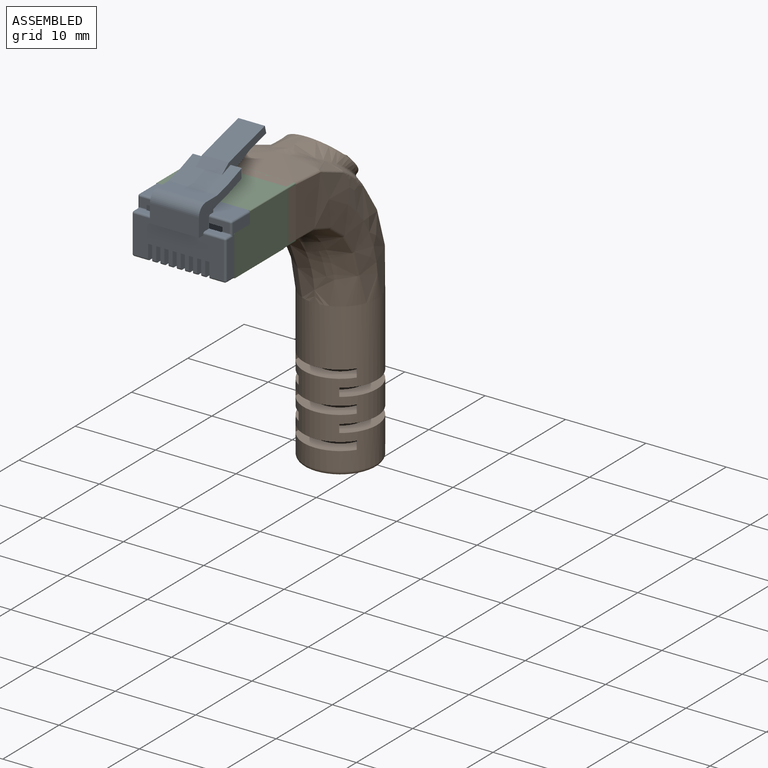
[diagram: assembled view]
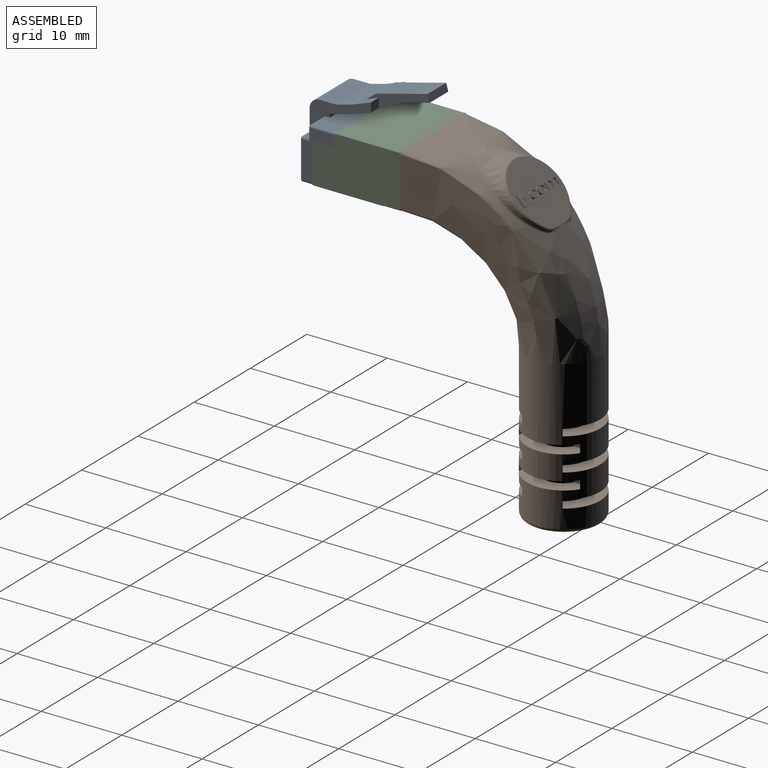
[diagram: assembled view, second angle]
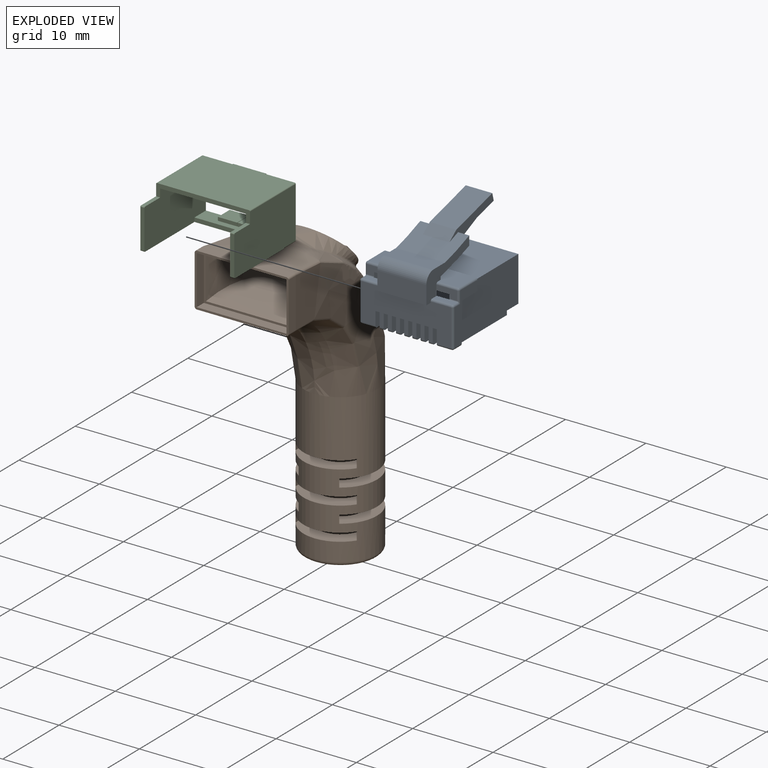
[diagram: exploded view]
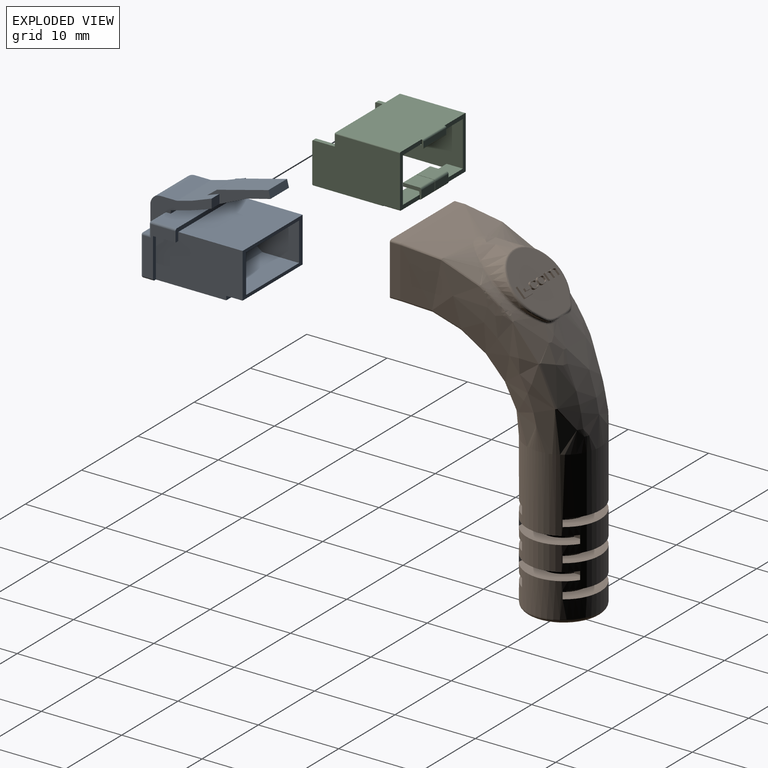
[diagram: exploded view, second angle]
ASSEMBLY  parts=3 mates=4
PART A: 144 faces, bbox 11.7x14x11.7 mm
  f0: plane 6.1x4.06mm, normal (0,0,-1), area 9.7mm2, adj f2,f97,f102,f103,f104,f130,f134,f135
  f1: plane 11.18x10.03mm, normal (-1,0,0), area 75.2mm2, adj f2,f10,f12,f13,f14,f16,f17,f18
  f2: cylinder r=0.25mm len=1.27mm, axis (0,-1,0), area 0.5mm2, adj f0,f1,f101,f135
  f3: plane 1.4x1.14mm, normal (0,-1,0), area 1.6mm2, adj f69,f71,f78,f85
  f4: plane 11.18x3.05mm, normal (1,0,0), area 31mm2, adj f67,f77,f78,f90,f95,f97,f98,f130
  f5: plane 11.18x4.57mm, normal (0,1,0), area 43.5mm2, adj f10,f11,f12,f14,f15,f16,f18,f19
  f6: plane 2.54x1.14mm, normal (0,1,0), area 2.1mm2, adj f60,f64,f77,f89,f90,f116
  f7: plane 2.54x0.76mm, normal (1,0,0), area 1.8mm2, adj f59,f64,f77,f86,f87,f116
  f8: plane 10.67x5.59mm, normal (0,-1,0), area 14.7mm2, adj f60,f61,f63,f64,f129,f133,f136,f138
  f9: plane 6.1x4.06mm, normal (0,0,1), area 9.7mm2, adj f87,f89,f92,f95,f96,f130,f131,f132
  f10: plane 4.45x2.95mm, normal (0,0,1), area 11.2mm2, adj f1,f5,f11,f13,f42,f43,f58,f59
  f11: plane 0.51x0.51mm, normal (-1,0,0), area 0.3mm2, adj f5,f10,f12,f42
  f12: plane 4.45x2.95mm, normal (0,0,-1), area 11.2mm2, adj f1,f5,f11,f13,f42,f43,f58,f59
  f13: plane 2.54x0.51mm, normal (0,1,0), area 1.3mm2, adj f1,f10,f12,f58
  f14: plane 4.45x2.95mm, normal (0,0,1), area 11.2mm2, adj f1,f5,f15,f17,f46,f47,f58,f59
  f15: plane 0.51x0.51mm, normal (-1,0,0), area 0.3mm2, adj f5,f14,f16,f46
  f16: plane 4.45x2.95mm, normal (0,0,-1), area 11.2mm2, adj f1,f5,f15,f17,f46,f47,f58,f59
  f17: plane 2.54x0.51mm, normal (0,1,0), area 1.3mm2, adj f1,f14,f16,f58
  f18: plane 4.45x2.95mm, normal (0,0,1), area 11.2mm2, adj f1,f5,f19,f21,f48,f49,f58,f59
  f19: plane 0.51x0.51mm, normal (-1,0,0), area 0.3mm2, adj f5,f18,f20,f48
  f20: plane 4.45x2.95mm, normal (0,0,-1), area 11.2mm2, adj f1,f5,f19,f21,f48,f49,f58,f59
  f21: plane 2.54x0.51mm, normal (0,1,0), area 1.3mm2, adj f1,f18,f20,f58
  f22: plane 4.45x2.95mm, normal (0,0,1), area 11.2mm2, adj f1,f5,f23,f25,f50,f51,f58,f59
  f23: plane 0.51x0.51mm, normal (-1,0,0), area 0.3mm2, adj f5,f22,f24,f50
  f24: plane 4.45x2.95mm, normal (0,0,-1), area 11.2mm2, adj f1,f5,f23,f25,f50,f51,f58,f59
  f25: plane 2.54x0.51mm, normal (0,1,0), area 1.3mm2, adj f1,f22,f24,f58
  f26: plane 4.45x2.95mm, normal (0,0,1), area 11.2mm2, adj f1,f5,f27,f29,f52,f53,f58,f59
  f27: plane 0.51x0.51mm, normal (-1,0,0), area 0.3mm2, adj f5,f26,f28,f52
  f28: plane 4.45x2.95mm, normal (0,0,-1), area 11.2mm2, adj f1,f5,f27,f29,f52,f53,f58,f59
  f29: plane 2.54x0.51mm, normal (0,1,0), area 1.3mm2, adj f1,f26,f28,f58
  f30: plane 4.45x2.95mm, normal (0,0,1), area 11.2mm2, adj f1,f5,f31,f33,f54,f55,f58,f59
  f31: plane 0.51x0.51mm, normal (-1,0,0), area 0.3mm2, adj f5,f30,f32,f54
  f32: plane 4.45x2.95mm, normal (0,0,-1), area 11.2mm2, adj f1,f5,f31,f33,f54,f55,f58,f59
  f33: plane 2.54x0.51mm, normal (0,1,0), area 1.3mm2, adj f1,f30,f32,f58
  f34: plane 4.45x2.95mm, normal (0,0,1), area 11.2mm2, adj f1,f5,f35,f37,f56,f57,f58,f59
  f35: plane 0.51x0.51mm, normal (-1,0,0), area 0.3mm2, adj f5,f34,f36,f56
  f36: plane 4.45x2.95mm, normal (0,0,-1), area 11.2mm2, adj f1,f5,f35,f37,f56,f57,f58,f59
  f37: plane 2.54x0.51mm, normal (0,1,0), area 1.3mm2, adj f1,f34,f36,f58
  f38: plane 4.45x2.95mm, normal (0,0,1), area 11.2mm2, adj f1,f5,f39,f41,f44,f45,f58,f59
  f39: plane 0.51x0.51mm, normal (-1,0,0), area 0.3mm2, adj f5,f38,f40,f44
  f40: plane 4.45x2.95mm, normal (0,0,-1), area 11.2mm2, adj f1,f5,f39,f41,f44,f45,f58,f59
  f41: plane 2.54x0.51mm, normal (0,1,0), area 1.3mm2, adj f1,f38,f40,f58
  f42: plane 1.02x0.51mm, normal (0,-1,0), area 0.5mm2, adj f10,f11,f12,f43
  f43: plane 0.51x0.51mm, normal (-1,0,0), area 0.3mm2, adj f10,f12,f42,f59
  f44: plane 1.02x0.51mm, normal (0,-1,0), area 0.5mm2, adj f38,f39,f40,f45
  f45: plane 0.51x0.51mm, normal (-1,0,0), area 0.3mm2, adj f38,f40,f44,f59
  f46: plane 1.02x0.51mm, normal (0,-1,0), area 0.5mm2, adj f14,f15,f16,f47
  f47: plane 0.51x0.51mm, normal (-1,0,0), area 0.3mm2, adj f14,f16,f46,f59
  f48: plane 1.02x0.51mm, normal (0,-1,0), area 0.5mm2, adj f18,f19,f20,f49
  f49: plane 0.51x0.51mm, normal (-1,0,0), area 0.3mm2, adj f18,f20,f48,f59
  f50: plane 1.02x0.51mm, normal (0,-1,0), area 0.5mm2, adj f22,f23,f24,f51
  f51: plane 0.51x0.51mm, normal (-1,0,0), area 0.3mm2, adj f22,f24,f50,f59
  f52: plane 1.02x0.51mm, normal (0,-1,0), area 0.5mm2, adj f26,f27,f28,f53
  f53: plane 0.51x0.51mm, normal (-1,0,0), area 0.3mm2, adj f26,f28,f52,f59
  f54: plane 1.02x0.51mm, normal (0,-1,0), area 0.5mm2, adj f30,f31,f32,f55
  f55: plane 0.51x0.51mm, normal (-1,0,0), area 0.3mm2, adj f30,f32,f54,f59
  f56: plane 1.02x0.51mm, normal (0,-1,0), area 0.5mm2, adj f34,f35,f36,f57
  f57: plane 0.51x0.51mm, normal (-1,0,0), area 0.3mm2, adj f34,f36,f56,f59
  f58: plane 9.4x4.4mm, normal (1,0,0), area 28mm2, adj f10,f12,f13,f14,f16,f17,f18,f20
  f59: plane 9.4x3.02mm, normal (0,-1,0), area 25.3mm2, adj f7,f10,f12,f14,f16,f18,f20,f22
  f60: plane 11.3x9.4mm, normal (-1,0,0), area 106.2mm2, adj f6,f8,f59,f63,f64,f65
  f61: plane 9.4x4.53mm, normal (1,0,0), area 42.6mm2, adj f8,f63,f64,f118
  f62: plane 9.4x2.09mm, normal (0.8,-0.6,0), area 24.6mm2, adj f63,f64,f118,f119
  f63: plane 11.43x4.78mm, normal (0,0,1), area 44.8mm2, adj f8,f58,f59,f60,f61,f62,f65,f66
  f64: plane 11.43x4.78mm, normal (0,0,-1), area 44.8mm2, adj f6,f7,f8,f58,f59,f60,f61,f62
  f65: plane 2.54x1.14mm, normal (0,1,0), area 2.1mm2, adj f60,f63,f78,f98,f102,f114
  f66: plane 2.54x0.76mm, normal (1,0,0), area 1.8mm2, adj f59,f63,f78,f104,f106,f114
  f67: plane 6.1x0.38mm, normal (0,-1,0), area 2.3mm2, adj f4,f68,f77,f78
  f68: plane 6.1x2.82mm, normal (-0.97,-0.26,0), area 17.8mm2, adj f67,f69,f77,f78
  f69: plane 6.1x2.26mm, normal (-0.95,-0.32,0), area 14.5mm2, adj f3,f68,f70,f77,f78,f79
  f70: plane 1.4x1.14mm, normal (0,-1,0), area 1.6mm2, adj f69,f71,f77,f84
  f71: plane 6.1x2.41mm, normal (0.94,0.34,0), area 10.3mm2, adj f3,f70,f72,f77,f78,f83,f84,f85
  f72: plane 6.1x1.91mm, normal (0.97,0.26,0), area 12mm2, adj f71,f73,f77,f78
  f73: plane 6.1x2.03mm, normal (1,0,0), area 12.4mm2, adj f72,f74,f77,f78
  f74: cylinder r=1.27mm len=6.1mm, axis (0,0,-1), area 12.2mm2, adj f73,f75,f77,f78
  f75: plane 6.1x2.29mm, normal (0,1,0), area 13.9mm2, adj f74,f76,f77,f78
  f76: plane 6.1x0.76mm, normal (-1,0,0), area 4.6mm2, adj f5,f75,f77,f78
  f77: plane 7.62x4.95mm, normal (0,0,1), area 12.5mm2, adj f4,f5,f6,f7,f59,f67,f68,f69
  f78: plane 7.62x4.95mm, normal (0,0,-1), area 12.5mm2, adj f3,f4,f5,f59,f65,f66,f67,f68
  f79: plane 3.43x3.3mm, normal (-0.91,-0.41,0), area 12.4mm2, adj f69,f80,f84,f85
  f80: plane 3.3x2.91mm, normal (-0.97,-0.25,0), area 9.9mm2, adj f79,f81,f84,f85
  f81: plane 3.3x0.93mm, normal (0.25,-0.97,0), area 3.2mm2, adj f80,f82,f84,f85
  f82: plane 6.4x3.3mm, normal (0.97,0.25,0), area 21.8mm2, adj f81,f83,f84,f85
  f83: plane 3.3x1.22mm, normal (0.79,0.61,0), area 5.1mm2, adj f71,f82,f84,f85
  f84: plane 7.86x3.2mm, normal (0,0,1), area 7.6mm2, adj f70,f71,f79,f80,f81,f82,f83
  f85: plane 7.86x3.2mm, normal (0,0,-1), area 7.6mm2, adj f3,f71,f79,f80,f81,f82,f83
  f86: cylinder r=0.25mm len=2.54mm, axis (0,0,-1), area 1mm2, adj f5,f7,f77,f88
  f87: cylinder r=0.25mm len=1.02mm, axis (0,-1,0), area 0.3mm2, adj f7,f9,f88,f117
  f88: sphere r=0.25mm, area 0.1mm2, adj f86,f87,f92
  f89: cylinder r=0.25mm len=1.52mm, axis (1,0,0), area 0.5mm2, adj f6,f9,f93,f117
  f90: cylinder r=0.25mm len=2.54mm, axis (0,0,1), area 1mm2, adj f4,f6,f77,f93
  f91: cylinder r=0.25mm len=1.78mm, axis (0,0,-1), area 0.7mm2, adj f1,f5,f40,f94
  f92: cylinder r=0.25mm len=4.57mm, axis (-1,0,0), area 1.8mm2, adj f5,f9,f88,f94
  f93: sphere r=0.25mm, area 0.1mm2, adj f89,f90,f95
  f94: sphere r=0.25mm, area 0.1mm2, adj f91,f92,f96
  f95: cylinder r=0.25mm len=3.05mm, axis (0,-1,0), area 1.2mm2, adj f4,f9,f93,f130
  f96: cylinder r=0.25mm len=1.27mm, axis (0,-1,0), area 0.5mm2, adj f1,f9,f94,f131
  f97: cylinder r=0.25mm len=3.05mm, axis (0,-1,0), area 1.2mm2, adj f0,f4,f100,f130
  f98: cylinder r=0.25mm len=2.54mm, axis (0,0,1), area 1mm2, adj f4,f65,f78,f100
  f99: cylinder r=0.25mm len=1.78mm, axis (0,0,-1), area 0.7mm2, adj f1,f5,f10,f101
  f100: sphere r=0.25mm, area 0.1mm2, adj f97,f98,f102
  f101: sphere r=0.25mm, area 0.1mm2, adj f2,f99,f103
  f102: cylinder r=0.25mm len=1.52mm, axis (1,0,0), area 0.5mm2, adj f0,f65,f100,f115
  f103: cylinder r=0.25mm len=4.57mm, axis (1,0,0), area 1.8mm2, adj f0,f5,f101,f105
  f104: cylinder r=0.25mm len=1.02mm, axis (0,-1,0), area 0.3mm2, adj f0,f66,f105,f115
  f105: sphere r=0.25mm, area 0.1mm2, adj f103,f104,f106
  f106: cylinder r=0.25mm len=2.54mm, axis (0,0,-1), area 1mm2, adj f5,f66,f78,f105
  f107: cylinder r=0.25mm len=0.51mm, axis (0,0,-1), area 0.2mm2, adj f1,f5,f36,f38
  f108: cylinder r=0.25mm len=0.51mm, axis (0,0,-1), area 0.2mm2, adj f1,f5,f32,f34
  f109: cylinder r=0.25mm len=0.51mm, axis (0,0,-1), area 0.2mm2, adj f1,f5,f28,f30
  f110: cylinder r=0.25mm len=0.51mm, axis (0,0,-1), area 0.2mm2, adj f1,f5,f24,f26
  f111: cylinder r=0.25mm len=0.51mm, axis (0,0,-1), area 0.2mm2, adj f1,f5,f20,f22
  f112: cylinder r=0.25mm len=0.51mm, axis (0,0,-1), area 0.2mm2, adj f1,f5,f16,f18
  f113: cylinder r=0.25mm len=0.51mm, axis (0,0,-1), area 0.2mm2, adj f1,f5,f12,f14
  f114: cylinder r=0.13mm len=0.89mm, axis (0,0,-1), area 0.2mm2, adj f63,f65,f66,f115
  f115: bspline ~0.38x0.38mm, area 0mm2, adj f102,f104,f114
  f116: cylinder r=0.13mm len=0.89mm, axis (0,0,-1), area 0.2mm2, adj f6,f7,f64,f117
  f117: bspline ~0.38x0.38mm, area 0mm2, adj f87,f89,f116
  f118: cylinder r=0.13mm len=9.4mm, axis (0,0,-1), area 0.8mm2, adj f61,f62,f63,f64
  f119: cylinder r=0.13mm len=9.4mm, axis (0,0,1), area 0.8mm2, adj f58,f62,f63,f64
  f120: cylinder r=0.13mm len=0.89mm, axis (0,0,-1), area 0.2mm2, adj f10,f58,f59,f63
  f121: cylinder r=0.13mm len=0.51mm, axis (0,0,-1), area 0.1mm2, adj f12,f14,f58,f59
  f122: cylinder r=0.13mm len=0.51mm, axis (0,0,-1), area 0.1mm2, adj f16,f18,f58,f59
  f123: cylinder r=0.13mm len=0.51mm, axis (0,0,-1), area 0.1mm2, adj f20,f22,f58,f59
  f124: cylinder r=0.13mm len=0.51mm, axis (0,0,-1), area 0.1mm2, adj f24,f26,f58,f59
  f125: cylinder r=0.13mm len=0.51mm, axis (0,0,-1), area 0.1mm2, adj f28,f30,f58,f59
  f126: cylinder r=0.13mm len=0.51mm, axis (0,0,-1), area 0.1mm2, adj f32,f34,f58,f59
  f127: cylinder r=0.13mm len=0.51mm, axis (0,0,-1), area 0.1mm2, adj f36,f38,f58,f59
  f128: cylinder r=0.13mm len=0.89mm, axis (0,0,-1), area 0.2mm2, adj f40,f58,f59,f64
  f129: plane 10.67x8mm, normal (1,0,0), area 85.4mm2, adj f8,f130,f133,f136
  f130: plane 11.68x1.52mm, normal (0,-1,0), area 6.9mm2, adj f0,f4,f9,f95,f97,f129,f132,f133
  f131: plane 5.08x0.51mm, normal (0,-1,0), area 2.6mm2, adj f1,f9,f96,f132,f133
  f132: plane 2.79x0.51mm, normal (-1,0,0), area 1.4mm2, adj f9,f130,f131,f133
  f133: plane 10.8x6.1mm, normal (0,0,1), area 61.9mm2, adj f1,f8,f129,f130,f131,f132,f137,f138
  f134: plane 2.79x0.51mm, normal (-1,0,0), area 1.4mm2, adj f0,f130,f135,f136
  f135: plane 5.08x0.51mm, normal (0,-1,0), area 2.6mm2, adj f0,f1,f2,f134,f136
  f136: plane 10.8x6.1mm, normal (0,0,-1), area 61.9mm2, adj f1,f8,f129,f130,f134,f135,f137,f138
  f137: plane 10.67x0.51mm, normal (0,-1,0), area 5.4mm2, adj f1,f133,f136,f138
  f138: plane 10.67x2.03mm, normal (-1,0,0), area 21.7mm2, adj f8,f133,f136,f137
  f139: plane 2.03x1.52mm, normal (0,0,-1), area 3.1mm2, adj f1,f140,f142,f143
  f140: plane 7.62x1.52mm, normal (0,1,0), area 11.6mm2, adj f1,f139,f141,f143
  f141: plane 2.03x1.52mm, normal (0,0,1), area 3.1mm2, adj f1,f140,f142,f143
  f142: plane 7.62x1.52mm, normal (0,-1,0), area 11.6mm2, adj f1,f139,f141,f143
  f143: plane 7.62x2.03mm, normal (-1,0,0), area 15.5mm2, adj f139,f140,f141,f142
PART B: 169 faces, bbox 41.6x22.5x11.7 mm
  f0: bspline ~8.13x7.63mm, area 33.8mm2, adj f1,f77,f78,f83
  f1: extruded ~2.91x1.88mm, area 1.2mm2, adj f0,f78,f83
  f2: cylinder r=2.79mm len=19.05mm, axis (1,0,0), area 267.8mm2, adj f16,f17,f18,f19,f20,f23,f24,f25
  f3: torus R=4.06mm, axis (-1,0,0), area 22mm2, adj f4,f16
  f4: cylinder r=4.57mm len=18.54mm, axis (-1,0,0), area 441.1mm2, adj f3,f5,f17,f20,f21,f22,f23,f26
  f5: bspline ~20.98x19.94mm, area 745.2mm2, adj f4,f7,f8,f9,f10,f11,f12,f13
  f6: plane 7.66x5.78mm, normal (-0.71,-0.71,0), area 46mm2, adj f82,f83,f84,f85,f86,f87,f97,f98
  f7: cylinder r=0.25mm len=1.3mm, axis (0,-1,0), area 0.5mm2, adj f5,f8,f14,f92
  f8: plane 6.1x1.3mm, normal (0,0,1), area 7.9mm2, adj f5,f7,f9,f92
  f9: cylinder r=0.25mm len=1.3mm, axis (0,-1,0), area 0.5mm2, adj f5,f8,f10,f92
  f10: plane 11.18x1.3mm, normal (1,0,0), area 14.5mm2, adj f5,f9,f11,f92
  f11: cylinder r=0.25mm len=1.3mm, axis (0,-1,0), area 0.5mm2, adj f5,f10,f12,f92
  f12: plane 6.1x1.3mm, normal (0,0,-1), area 7.9mm2, adj f5,f11,f13,f92
  f13: cylinder r=0.25mm len=1.3mm, axis (0,-1,0), area 0.5mm2, adj f5,f12,f14,f92
  f14: plane 11.18x1.3mm, normal (-1,0,0), area 14.5mm2, adj f5,f7,f13,f92
  f15: plane 11.18x6.1mm, normal (0,1,0), area 8.5mm2, adj f88,f89,f90,f91,f93,f94,f95,f96
  f16: plane 8.13x8.13mm, normal (1,0,0), area 27.4mm2, adj f2,f3
  f17: plane 7.62x3.05mm, normal (1,0,0), area 14.4mm2, adj f2,f4,f18,f19,f21,f22
  f18: plane 1.47x1.02mm, normal (0,0,-1), area 1.5mm2, adj f2,f17,f20,f22
  f19: plane 1.47x1.02mm, normal (0,0,-1), area 1.5mm2, adj f2,f17,f20,f21
  f20: plane 7.62x3.05mm, normal (-1,0,0), area 14.4mm2, adj f2,f4,f18,f19,f21,f22
  f21: plane 1.02x1mm, normal (0,-1,0), area 1mm2, adj f4,f17,f19,f20
  f22: plane 1.02x1mm, normal (0,1,0), area 1mm2, adj f4,f17,f18,f20
  f23: plane 7.62x3.05mm, normal (1,0,0), area 14.4mm2, adj f2,f4,f24,f25,f27,f28
  f24: plane 1.47x1.02mm, normal (0,0,-1), area 1.5mm2, adj f2,f23,f26,f28
  f25: plane 1.47x1.02mm, normal (0,0,-1), area 1.5mm2, adj f2,f23,f26,f27
  f26: plane 7.62x3.05mm, normal (-1,0,0), area 14.4mm2, adj f2,f4,f24,f25,f27,f28
  f27: plane 1.02x1mm, normal (0,-1,0), area 1mm2, adj f4,f23,f25,f26
  f28: plane 1.02x1mm, normal (0,1,0), area 1mm2, adj f4,f23,f24,f26
  f29: plane 1.47x1.02mm, normal (0,0,1), area 1.5mm2, adj f2,f31,f32,f33
  f30: plane 1.47x1.02mm, normal (0,0,1), area 1.5mm2, adj f2,f31,f32,f34
  f31: plane 7.62x3.05mm, normal (1,0,0), area 14.4mm2, adj f2,f4,f29,f30,f33,f34
  f32: plane 7.62x3.05mm, normal (-1,0,0), area 14.4mm2, adj f2,f4,f29,f30,f33,f34
  f33: plane 1.02x1mm, normal (0,-1,0), area 1mm2, adj f4,f29,f31,f32
  f34: plane 1.02x1mm, normal (0,1,0), area 1mm2, adj f4,f30,f31,f32
  f35: plane 1.47x1.02mm, normal (0,0,1), area 1.5mm2, adj f2,f37,f38,f39
  f36: plane 1.47x1.02mm, normal (0,0,1), area 1.5mm2, adj f2,f37,f38,f40
  f37: plane 7.62x3.05mm, normal (1,0,0), area 14.4mm2, adj f2,f4,f35,f36,f39,f40
  f38: plane 7.62x3.05mm, normal (-1,0,0), area 14.4mm2, adj f2,f4,f35,f36,f39,f40
  f39: plane 1.02x1mm, normal (0,-1,0), area 1mm2, adj f4,f35,f37,f38
  f40: plane 1.02x1mm, normal (0,1,0), area 1mm2, adj f4,f36,f37,f38
  f41: plane 1.12x1.02mm, normal (0,1,0), area 1.1mm2, adj f2,f43,f44,f45
  f42: plane 1.12x1.02mm, normal (0,1,0), area 1.1mm2, adj f2,f43,f44,f46
  f43: plane 7.62x3.81mm, normal (1,0,0), area 16.4mm2, adj f2,f4,f41,f42,f45,f46
  f44: plane 7.62x3.81mm, normal (-1,0,0), area 16.4mm2, adj f2,f4,f41,f42,f45,f46
  f45: plane 1.77x1.02mm, normal (0,0,1), area 1.8mm2, adj f4,f41,f43,f44
  f46: plane 1.77x1.02mm, normal (0,0,-1), area 1.8mm2, adj f4,f42,f43,f44
  f47: plane 7.62x3.81mm, normal (1,0,0), area 16.4mm2, adj f2,f4,f48,f49,f51,f52
  f48: plane 1.12x1.02mm, normal (0,-1,0), area 1.1mm2, adj f2,f47,f50,f52
  f49: plane 1.12x1.02mm, normal (0,-1,0), area 1.1mm2, adj f2,f47,f50,f51
  f50: plane 7.62x3.81mm, normal (-1,0,0), area 16.4mm2, adj f2,f4,f48,f49,f51,f52
  f51: plane 1.77x1.02mm, normal (0,0,1), area 1.8mm2, adj f4,f47,f49,f50
  f52: plane 1.77x1.02mm, normal (0,0,-1), area 1.8mm2, adj f4,f47,f48,f50
  f53: plane 1.12x1.02mm, normal (0,1,0), area 1.1mm2, adj f2,f55,f56,f57
  f54: plane 1.12x1.02mm, normal (0,1,0), area 1.1mm2, adj f2,f55,f56,f58
  f55: plane 7.62x3.81mm, normal (1,0,0), area 16.4mm2, adj f2,f4,f53,f54,f57,f58
  f56: plane 7.62x3.81mm, normal (-1,0,0), area 16.4mm2, adj f2,f4,f53,f54,f57,f58
  f57: plane 1.77x1.02mm, normal (0,0,1), area 1.8mm2, adj f4,f53,f55,f56
  f58: plane 1.77x1.02mm, normal (0,0,-1), area 1.8mm2, adj f4,f54,f55,f56
  f59: plane 1.12x1.02mm, normal (0,-1,0), area 1.1mm2, adj f2,f61,f62,f64
  f60: plane 1.12x1.02mm, normal (0,-1,0), area 1.1mm2, adj f2,f61,f62,f63
  f61: plane 7.62x3.81mm, normal (-1,0,0), area 16.4mm2, adj f2,f4,f59,f60,f63,f64
  f62: plane 7.62x3.81mm, normal (1,0,0), area 16.4mm2, adj f2,f4,f59,f60,f63,f64
  f63: plane 1.77x1.02mm, normal (0,0,1), area 1.8mm2, adj f4,f60,f61,f62
  f64: plane 1.77x1.02mm, normal (0,0,-1), area 1.8mm2, adj f4,f59,f61,f62
  f65: plane 1.12x1.02mm, normal (0,1,0), area 1.1mm2, adj f2,f67,f68,f69
  f66: plane 1.12x1.02mm, normal (0,1,0), area 1.1mm2, adj f2,f67,f68,f70
  f67: plane 7.62x3.81mm, normal (1,0,0), area 16.4mm2, adj f2,f4,f65,f66,f69,f70
  f68: plane 7.62x3.81mm, normal (-1,0,0), area 16.4mm2, adj f2,f4,f65,f66,f69,f70
  f69: plane 1.77x1.02mm, normal (0,0,1), area 1.8mm2, adj f4,f65,f67,f68
  f70: plane 1.77x1.02mm, normal (0,0,-1), area 1.8mm2, adj f4,f66,f67,f68
  f71: plane 1.12x1.02mm, normal (0,-1,0), area 1.1mm2, adj f2,f73,f74,f76
  f72: plane 1.12x1.02mm, normal (0,-1,0), area 1.1mm2, adj f2,f73,f74,f75
  f73: plane 7.62x3.81mm, normal (-1,0,0), area 16.4mm2, adj f2,f4,f71,f72,f75,f76
  f74: plane 7.62x3.81mm, normal (1,0,0), area 16.4mm2, adj f2,f4,f71,f72,f75,f76
  f75: plane 1.77x1.02mm, normal (0,0,1), area 1.8mm2, adj f4,f72,f73,f74
  f76: plane 1.77x1.02mm, normal (0,0,-1), area 1.8mm2, adj f4,f71,f73,f74
  f77: extruded ~2.91x1.88mm, area 1.2mm2, adj f0,f78,f83
  f78: bspline ~10.43x8.44mm, area 6.7mm2, adj f0,f1,f5,f77,f79,f80,f82,f85
  f79: bspline ~1.64x0.58mm, area 0.4mm2, adj f5,f78,f81,f87
  f80: bspline ~1.64x0.58mm, area 0.4mm2, adj f5,f78,f81,f84
  f81: bspline ~1.48x0.2mm, area 0.2mm2, adj f5,f79,f80,f86
  f82: bspline ~1.19x1.16mm, area 0.7mm2, adj f6,f78,f83,f84
  f83: bspline ~8.16x4.99mm, area 5.9mm2, adj f0,f1,f6,f77,f82,f85
  f84: bspline ~1.52x0.47mm, area 0.4mm2, adj f6,f80,f82,f86
  f85: bspline ~1.34x1.17mm, area 0.7mm2, adj f6,f78,f83,f87
  f86: bspline ~1.48x0.14mm, area 0.2mm2, adj f6,f81,f84,f87
  f87: bspline ~1.52x0.47mm, area 0.4mm2, adj f6,f79,f85,f86
  f88: bspline ~18.11x14.53mm, area 184.4mm2, adj f2,f15,f89,f91
  f89: bspline ~19.49x19.42mm, area 101.9mm2, adj f2,f15,f88,f90
  f90: bspline ~19.49x19.42mm, area 220.1mm2, adj f2,f15,f89,f91
  f91: bspline ~19.19x15.43mm, area 86.3mm2, adj f2,f15,f88,f90
  f92: plane 11.68x6.6mm, normal (0,1,0), area 9mm2, adj f7,f8,f9,f10,f11,f12,f13,f14
  f93: plane 11.18x1.27mm, normal (1,0,0), area 14.2mm2, adj f15,f92,f94,f96
  f94: plane 6.1x1.27mm, normal (0,0,-1), area 7.7mm2, adj f15,f92,f93,f95
  f95: plane 11.18x1.27mm, normal (-1,0,0), area 14.2mm2, adj f15,f92,f94,f96
  f96: plane 6.1x1.27mm, normal (0,0,1), area 7.7mm2, adj f15,f92,f93,f95
  f97: plane 1.21x1.21mm, normal (0,0,-1), area 0.4mm2, adj f6,f98,f102,f103
  f98: plane 1.38x0.18mm, normal (0.71,-0.71,0), area 0.3mm2, adj f6,f97,f99,f103
  f99: plane 0.43x0.43mm, normal (0,0,1), area 0.1mm2, adj f6,f98,f100,f103
  f100: plane 0.95x0.18mm, normal (-0.71,0.71,0), area 0.2mm2, adj f6,f99,f101,f103
  f101: plane 0.96x0.96mm, normal (0,0,1), area 0.3mm2, adj f6,f100,f102,f103
  f102: plane 0.42x0.18mm, normal (-0.71,0.71,0), area 0.1mm2, adj f6,f97,f101,f103
  f103: plane 1.38x1.03mm, normal (-0.71,-0.71,0), area 1mm2, adj f97,f98,f99,f100,f101,f102
  f104: plane 0.42x0.42mm, normal (0,0,-1), area 0.1mm2, adj f6,f105,f107,f108
  f105: plane 0.83x0.18mm, normal (0.71,-0.71,0), area 0.2mm2, adj f6,f104,f106,f108
  f106: plane 0.42x0.42mm, normal (0,0,1), area 0.1mm2, adj f6,f105,f107,f108
  f107: plane 0.83x0.18mm, normal (-0.71,0.71,0), area 0.2mm2, adj f6,f104,f106,f108
  f108: plane 0.83x0.24mm, normal (-0.71,-0.71,0), area 0.3mm2, adj f104,f105,f106,f107
  f109: plane 1.21x0.66mm, normal (-0.71,-0.71,0), area 0.4mm2, adj f110,f111,f112,f113,f114,f115,f116,f117
  f110: extruded ~0.5x0.44mm, area 0.2mm2, adj f6,f109,f111,f117
  f111: plane 0.32x0.32mm, normal (0,0,-1), area 0.1mm2, adj f6,f109,f110,f112
  f112: extruded ~0.5x0.44mm, area 0.2mm2, adj f6,f109,f111,f113
  f113: plane 0.22x0.18mm, normal (0.71,-0.71,0), area 0.1mm2, adj f6,f109,f112,f114
  f114: extruded ~0.5x0.44mm, area 0.2mm2, adj f6,f109,f113,f115
  f115: plane 0.32x0.32mm, normal (0,0,1), area 0.1mm2, adj f6,f109,f114,f116
  f116: extruded ~0.5x0.44mm, area 0.2mm2, adj f6,f109,f115,f117
  f117: plane 0.22x0.18mm, normal (-0.71,0.71,0), area 0.1mm2, adj f6,f109,f110,f116
  f118: extruded ~0.36x0.36mm, area 0.1mm2, adj f109,f119,f125,f126
  f119: plane 0.31x0.18mm, normal (0.71,-0.71,0), area 0.1mm2, adj f109,f118,f120,f126
  f120: extruded ~0.36x0.36mm, area 0.1mm2, adj f109,f119,f121,f126
  f121: plane 0.31x0.31mm, normal (0,0,1), area 0mm2, adj f109,f120,f122,f126
  f122: extruded ~0.36x0.36mm, area 0.1mm2, adj f109,f121,f123,f126
  f123: plane 0.31x0.18mm, normal (-0.71,0.71,0), area 0.1mm2, adj f109,f122,f124,f126
  f124: extruded ~0.36x0.36mm, area 0.1mm2, adj f109,f123,f125,f126
  f125: plane 0.31x0.31mm, normal (0,0,-1), area 0mm2, adj f109,f118,f124,f126
  f126: plane 0.91x0.48mm, normal (-0.71,-0.71,0), area 0.6mm2, adj f118,f119,f120,f121,f122,f123,f124,f125
  f127: plane 0.82x0.82mm, normal (0,0,-1), area 0.2mm2, adj f6,f128,f150,f151
  f128: plane 0.18x0.18mm, normal (0.71,-0.71,0), area 0mm2, adj f6,f127,f129,f151
  f129: plane 0.58x0.58mm, normal (0,0,1), area 0.1mm2, adj f6,f128,f130,f151
  f130: extruded ~0.34x0.34mm, area 0.1mm2, adj f6,f129,f131,f151
  f131: plane 0.18x0.18mm, normal (0.71,-0.71,0), area 0mm2, adj f6,f130,f132,f151
  f132: extruded ~0.35x0.35mm, area 0.1mm2, adj f6,f131,f133,f151
  f133: plane 0.56x0.56mm, normal (0,0,-1), area 0.1mm2, adj f6,f132,f134,f151
  f134: plane 0.18x0.18mm, normal (0.71,-0.71,0), area 0mm2, adj f6,f133,f135,f151
  f135: plane 0.56x0.56mm, normal (0,0,1), area 0.1mm2, adj f6,f134,f136,f151
  f136: extruded ~0.36x0.36mm, area 0.1mm2, adj f6,f135,f137,f151
  f137: plane 0.18x0.18mm, normal (0.71,-0.71,0), area 0mm2, adj f6,f136,f138,f151
  f138: extruded ~0.32x0.32mm, area 0.1mm2, adj f6,f137,f139,f151
  f139: plane 0.59x0.59mm, normal (0,0,-1), area 0.1mm2, adj f6,f138,f140,f151
  f140: plane 0.18x0.18mm, normal (0.71,-0.71,0), area 0mm2, adj f6,f139,f141,f151
  f141: plane 0.61x0.61mm, normal (0,0,1), area 0.2mm2, adj f6,f140,f142,f151
  f142: extruded ~0.4x0.4mm, area 0.1mm2, adj f6,f141,f143,f151
  f143: plane 0.18x0.18mm, normal (-0.71,0.71,0), area 0mm2, adj f6,f142,f144,f151
  f144: extruded ~0.33x0.3mm, area 0.1mm2, adj f6,f143,f145,f151
  f145: extruded ~0.3x0.3mm, area 0.1mm2, adj f6,f144,f146,f151
  f146: plane 0.25x0.18mm, normal (-0.71,0.71,0), area 0.1mm2, adj f6,f145,f147,f151
  f147: extruded ~0.3x0.26mm, area 0.1mm2, adj f6,f146,f148,f151
  f148: plane 0.18x0.18mm, normal (-0.71,0.71,0), area 0mm2, adj f6,f147,f149,f151
  f149: plane 0.25x0.25mm, normal (0,0,1), area 0mm2, adj f6,f148,f150,f151
  f150: plane 0.18x0.18mm, normal (-0.71,0.71,0), area 0mm2, adj f6,f127,f149,f151
  f151: plane 1.9x0.65mm, normal (-0.71,-0.71,0), area 0.6mm2, adj f127,f128,f129,f130,f131,f132,f133,f134
  f152: extruded ~0.31x0.31mm, area 0.1mm2, adj f6,f153,f167,f168
  f153: plane 0.26x0.18mm, normal (-0.71,0.71,0), area 0.1mm2, adj f6,f152,f154,f168
  f154: extruded ~0.35x0.35mm, area 0.1mm2, adj f6,f153,f155,f168
  f155: plane 0.31x0.31mm, normal (0,0,1), area 0mm2, adj f6,f154,f156,f168
  f156: extruded ~0.35x0.35mm, area 0.1mm2, adj f6,f155,f157,f168
  f157: plane 0.28x0.18mm, normal (0.71,-0.71,0), area 0.1mm2, adj f6,f156,f158,f168
  f158: extruded ~0.31x0.31mm, area 0.1mm2, adj f6,f157,f159,f168
  f159: plane 0.18x0.18mm, normal (0.71,-0.71,0.02), area 0mm2, adj f6,f158,f160,f168
  f160: extruded ~0.4x0.4mm, area 0.1mm2, adj f6,f159,f161,f168
  f161: plane 0.25x0.18mm, normal (-0.71,0.71,0), area 0.1mm2, adj f6,f160,f162,f168
  f162: extruded ~0.45x0.44mm, area 0.2mm2, adj f6,f161,f163,f168
  f163: plane 0.32x0.32mm, normal (0,0,-1), area 0.1mm2, adj f6,f162,f164,f168
  f164: extruded ~0.44x0.44mm, area 0.2mm2, adj f6,f163,f165,f168
  f165: plane 0.34x0.18mm, normal (0.71,-0.71,0), area 0.1mm2, adj f6,f164,f166,f168
  f166: extruded ~0.4x0.4mm, area 0.1mm2, adj f6,f165,f167,f168
  f167: plane 0.18x0.18mm, normal (-0.71,0.71,-0.03), area 0mm2, adj f6,f152,f166,f168
  f168: plane 1.14x0.69mm, normal (-0.71,-0.71,0), area 0.4mm2, adj f152,f153,f154,f155,f156,f157,f158,f159
PART C: 67 faces, bbox 6.6x11.2x11.7 mm
  f0: plane 6.6x3.76mm, normal (0,-1,0), area 6.5mm2, adj f10,f11,f12,f14,f15,f16,f29,f31
  f1: plane 5.69x2.1mm, normal (-1,0,0), area 11.7mm2, adj f3,f7,f30,f34,f46,f53,f63
  f2: plane 5.31x2.08mm, normal (1,0,0), area 10.8mm2, adj f3,f7,f13,f34,f45,f53,f63
  f3: plane 5.82x0.51mm, normal (0,1,0), area 2.8mm2, adj f1,f2,f13,f24,f30,f34
  f4: plane 8.7x0.51mm, normal (-1,0,0), area 4.4mm2, adj f9,f13,f23,f27
  f5: plane 8.7x0.51mm, normal (-1,0,0), area 4.4mm2, adj f11,f15,f22,f26
  f6: plane 4.83x0.51mm, normal (0,1,0), area 2.5mm2, adj f9,f13,f27,f28
  f7: plane 6.6x3.76mm, normal (0,-1,0), area 6.5mm2, adj f1,f2,f9,f12,f13,f16,f30,f32
  f8: plane 4.83x0.51mm, normal (0,1,0), area 2.5mm2, adj f11,f15,f25,f26
  f9: plane 10.92x6.48mm, normal (0,0,1), area 66.6mm2, adj f4,f6,f7,f18,f20,f23,f24,f27
  f10: plane 5.69x2.1mm, normal (-1,0,0), area 11.7mm2, adj f0,f17,f29,f33,f61,f62,f64
  f11: plane 10.92x6.48mm, normal (0,0,-1), area 66.6mm2, adj f0,f5,f8,f19,f20,f21,f22,f25
  f12: plane 11.43x8.19mm, normal (1,0,0), area 93.2mm2, adj f0,f7,f20,f31,f32,f42,f43,f44
  f13: plane 10.92x6.1mm, normal (0,0,-1), area 62.7mm2, adj f2,f3,f4,f6,f7,f16,f18,f20
  f14: plane 5.31x2.08mm, normal (1,0,0), area 10.8mm2, adj f0,f15,f17,f33,f54,f62,f64
  f15: plane 10.92x6.1mm, normal (0,0,1), area 62.7mm2, adj f0,f5,f8,f14,f16,f17,f19,f20
  f16: plane 10.67x8.18mm, normal (-1,0,0), area 86.7mm2, adj f0,f7,f13,f15,f20,f35,f43,f44
  f17: plane 5.82x0.51mm, normal (0,1,0), area 2.8mm2, adj f10,f14,f15,f21,f29,f33
  f18: plane 2.67x0.51mm, normal (1,0,0), area 1.4mm2, adj f9,f13,f20,f28
  f19: plane 2.67x0.51mm, normal (1,0,0), area 1.4mm2, adj f11,f15,f20,f25
  f20: plane 11.68x1.52mm, normal (0,1,0), area 7mm2, adj f9,f11,f12,f13,f15,f16,f18,f19
  f21: plane 0.51x0.07mm, normal (-1,0,0), area 0mm2, adj f11,f15,f17,f22
  f22: plane 0.51x0.13mm, normal (0,-1,0), area 0.1mm2, adj f5,f11,f15,f21
  f23: plane 0.51x0.13mm, normal (0,-1,0), area 0.1mm2, adj f4,f9,f13,f24
  f24: plane 0.51x0.07mm, normal (-1,0,0), area 0mm2, adj f3,f9,f13,f23
  f25: cylinder r=0.13mm len=0.51mm, axis (0,0,1), area 0.1mm2, adj f8,f11,f15,f19
  f26: cylinder r=0.13mm len=0.51mm, axis (0,0,-1), area 0.1mm2, adj f5,f8,f11,f15
  f27: cylinder r=0.13mm len=0.51mm, axis (0,0,-1), area 0.1mm2, adj f4,f6,f9,f13
  f28: cylinder r=0.13mm len=0.51mm, axis (0,0,1), area 0.1mm2, adj f6,f9,f13,f18
  f29: cylinder r=0.13mm len=2.03mm, axis (0,1,0), area 0.4mm2, adj f0,f10,f11,f17
  f30: cylinder r=0.13mm len=2.03mm, axis (0,1,0), area 0.4mm2, adj f1,f3,f7,f9
  f31: cylinder r=0.13mm len=8.13mm, axis (0,1,0), area 1.6mm2, adj f0,f11,f12,f20
  f32: cylinder r=0.13mm len=8.13mm, axis (0,1,0), area 1.6mm2, adj f7,f9,f12,f20
  f33: plane 2.29x1.35mm, normal (0,0,1), area 2.2mm2, adj f10,f14,f17,f54,f55,f56,f57,f58
  f34: plane 2.29x1.35mm, normal (0,0,-1), area 2.2mm2, adj f1,f2,f3,f45,f46,f47,f48,f49
  f35: plane 4.06x0.03mm, normal (0,1,0), area 0.1mm2, adj f16,f36,f43,f44
  f36: cylinder r=0.13mm len=4.06mm, axis (0,0,-1), area 0.8mm2, adj f35,f37,f43,f44
  f37: plane 4.06x2.41mm, normal (1,0,0), area 9.8mm2, adj f36,f38,f43,f44
  f38: plane 4.06x0.43mm, normal (0,1,0), area 1.8mm2, adj f37,f39,f43,f44
  f39: plane 4.06x2.54mm, normal (-1,0,0), area 10.3mm2, adj f38,f40,f43,f44
  f40: cylinder r=0.25mm len=4.06mm, axis (0,0,-1), area 1.6mm2, adj f39,f41,f43,f44
  f41: plane 4.06x0.65mm, normal (0,-1,0), area 2.6mm2, adj f40,f42,f43,f44
  f42: cylinder r=0.19mm len=4.06mm, axis (0,0,-1), area 1.2mm2, adj f12,f41,f43,f44
  f43: plane 2.79x1.09mm, normal (0,0,1), area 1.3mm2, adj f12,f16,f35,f36,f37,f38,f39,f40
  f44: plane 2.79x1.09mm, normal (0,0,-1), area 1.3mm2, adj f12,f16,f35,f36,f37,f38,f39,f40
  f45: plane 2.39x0.28mm, normal (0,1,0), area 0.7mm2, adj f2,f34,f52,f53
  f46: cylinder r=0.19mm len=2.39mm, axis (0,0,-1), area 0.7mm2, adj f1,f34,f47,f53
  f47: plane 2.39x0.9mm, normal (0,-1,0), area 2.2mm2, adj f34,f46,f48,f53
  f48: cylinder r=0.25mm len=2.39mm, axis (0,0,-1), area 1mm2, adj f34,f47,f49,f53
  f49: plane 2.39x2.03mm, normal (1,0,0), area 4.9mm2, adj f34,f48,f50,f53
  f50: plane 2.39x0.43mm, normal (0,1,0), area 1mm2, adj f34,f49,f51,f53
  f51: plane 2.39x1.91mm, normal (-1,0,0), area 4.5mm2, adj f34,f50,f52,f53
  f52: cylinder r=0.13mm len=2.39mm, axis (0,0,-1), area 0.5mm2, adj f34,f45,f51,f53
  f53: plane 2.29x1.35mm, normal (0,0,1), area 1.2mm2, adj f1,f2,f45,f46,f47,f48,f49,f50
  f54: plane 2.39x0.28mm, normal (0,1,0), area 0.7mm2, adj f14,f33,f55,f62
  f55: cylinder r=0.13mm len=2.39mm, axis (0,0,1), area 0.5mm2, adj f33,f54,f56,f62
  f56: plane 2.39x1.91mm, normal (-1,0,0), area 4.5mm2, adj f33,f55,f57,f62
  f57: plane 2.39x0.43mm, normal (0,1,0), area 1mm2, adj f33,f56,f58,f62
  f58: plane 2.39x2.03mm, normal (1,0,0), area 4.9mm2, adj f33,f57,f59,f62
  f59: cylinder r=0.25mm len=2.39mm, axis (0,0,1), area 1mm2, adj f33,f58,f60,f62
  f60: plane 2.39x0.9mm, normal (0,-1,0), area 2.2mm2, adj f33,f59,f61,f62
  f61: cylinder r=0.19mm len=2.39mm, axis (0,0,1), area 0.7mm2, adj f10,f33,f60,f62
  f62: plane 2.29x1.35mm, normal (0,0,-1), area 1.2mm2, adj f10,f14,f54,f55,f56,f57,f58,f59
  f63: cylinder r=0.05mm len=0.51mm, axis (1,0,0), area 0mm2, adj f1,f2,f7,f53
  f64: cylinder r=0.05mm len=0.51mm, axis (1,0,0), area 0mm2, adj f0,f10,f14,f62
  f65: cylinder r=0.05mm len=0.51mm, axis (-1,0,0), area 0mm2, adj f0,f12,f16,f44
  f66: cylinder r=0.05mm len=0.51mm, axis (1,0,0), area 0mm2, adj f7,f12,f16,f43
PLACE A rot(axis=(0.71,0,0.71),180deg) t=(0,1.27,134.87)mm
PLACE B rot(axis=(0.71,0,-0.71),180deg) t=(0,0,-64.26)mm
PLACE C rot(axis=(-0.71,0,-0.71),180deg) t=(0,1.27,134.87)mm
MATE planar C.f12 <-> B.f14  axis (0,0,1) through (0,-20.33,38.61)mm
MATE fastened C.f9 <-> A.f9  axis (1,0,0) through (5.84,-24.41,37.08)mm
MATE planar C.f11 <-> B.f8  axis (-1,0,0) through (-5.84,-16.28,35.31)mm
MATE planar C.f0 <-> B.f15  axis (0,1,0) through (-5.33,-16.28,38.1)mm
